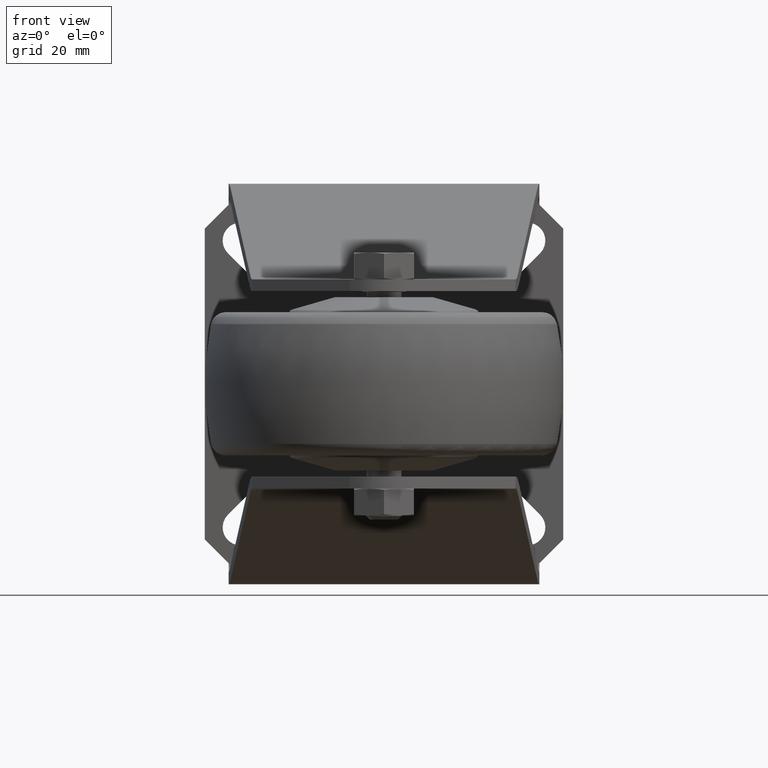
[diagram: clean part render]
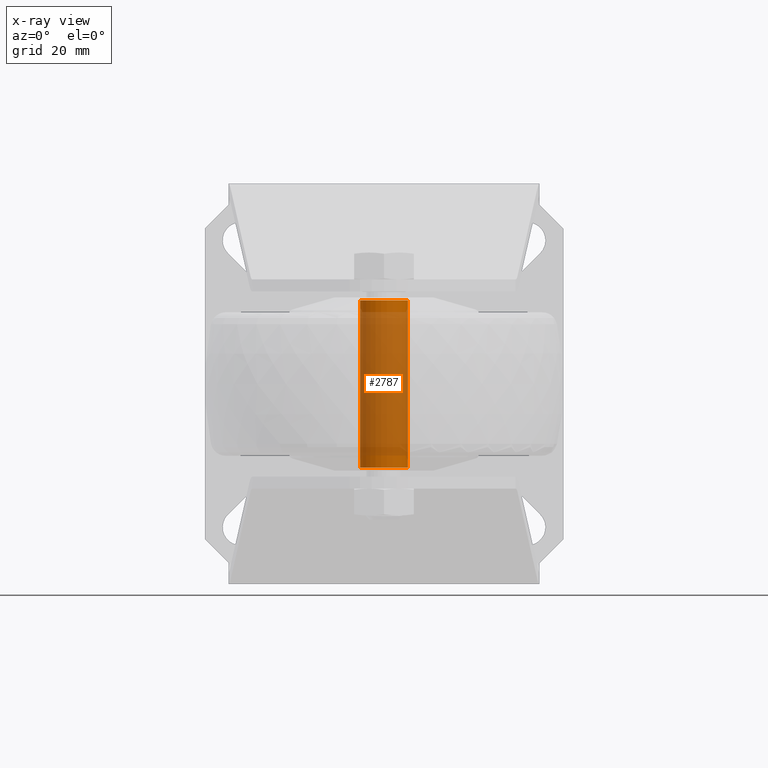
[diagram: x-ray — body ghosted, one internal face saturated and labeled with its STEP entity id]
A machine part, front view, then the same camera in x-ray: the body is ghosted and one INTERNAL B-rep face — a face not visible from any outside direction — is saturated and labeled: STEP entity #2787.
In plain terms, the highlighted cylindrical surface (bore or boss wall) has radius 4 mm, axis along (0, 0, -1).
Its self-contained STEP definition (entity closure, byte-faithful):
#141=LINE('',#4599,#327);
#327=VECTOR('',#3662,4.);
#504=CYLINDRICAL_SURFACE('',#3199,4.);
#706=FACE_OUTER_BOUND('',#892,.T.);
#892=EDGE_LOOP('',(#2068,#2069,#2070,#2071));
#1092=CIRCLE('',#3193,4.);
#1095=CIRCLE('',#3198,4.);
#1300=VERTEX_POINT('',#4587);
#1303=VERTEX_POINT('',#4596);
#1583=EDGE_CURVE('',#1300,#1300,#1092,.T.);
#1587=EDGE_CURVE('',#1303,#1303,#1095,.T.);
#1588=EDGE_CURVE('',#1303,#1300,#141,.T.);
#2068=ORIENTED_EDGE('',*,*,#1587,.F.);
#2069=ORIENTED_EDGE('',*,*,#1588,.T.);
#2070=ORIENTED_EDGE('',*,*,#1583,.T.);
#2071=ORIENTED_EDGE('',*,*,#1588,.F.);
#2787=ADVANCED_FACE('',(#706),#504,.T.);
#3193=AXIS2_PLACEMENT_3D('',#4588,#3647,#3648);
#3198=AXIS2_PLACEMENT_3D('',#4597,#3658,#3659);
#3199=AXIS2_PLACEMENT_3D('',#4598,#3660,#3661);
#3647=DIRECTION('center_axis',(1.,0.,0.));
#3648=DIRECTION('ref_axis',(0.,0.,-1.));
#3658=DIRECTION('center_axis',(1.,0.,0.));
#3659=DIRECTION('ref_axis',(0.,0.,-1.));
#3660=DIRECTION('center_axis',(1.,0.,0.));
#3661=DIRECTION('ref_axis',(0.,0.,-1.));
#3662=DIRECTION('',(-1.,0.,0.));
#4587=CARTESIAN_POINT('',(-14.,-4.89858719658941E-16,4.));
#4588=CARTESIAN_POINT('Origin',(-14.,0.,0.));
#4596=CARTESIAN_POINT('',(14.,-4.89858719658941E-16,4.));
#4597=CARTESIAN_POINT('Origin',(14.,0.,0.));
#4598=CARTESIAN_POINT('Origin',(14.,0.,0.));
#4599=CARTESIAN_POINT('',(14.,-4.89858719658941E-16,4.));